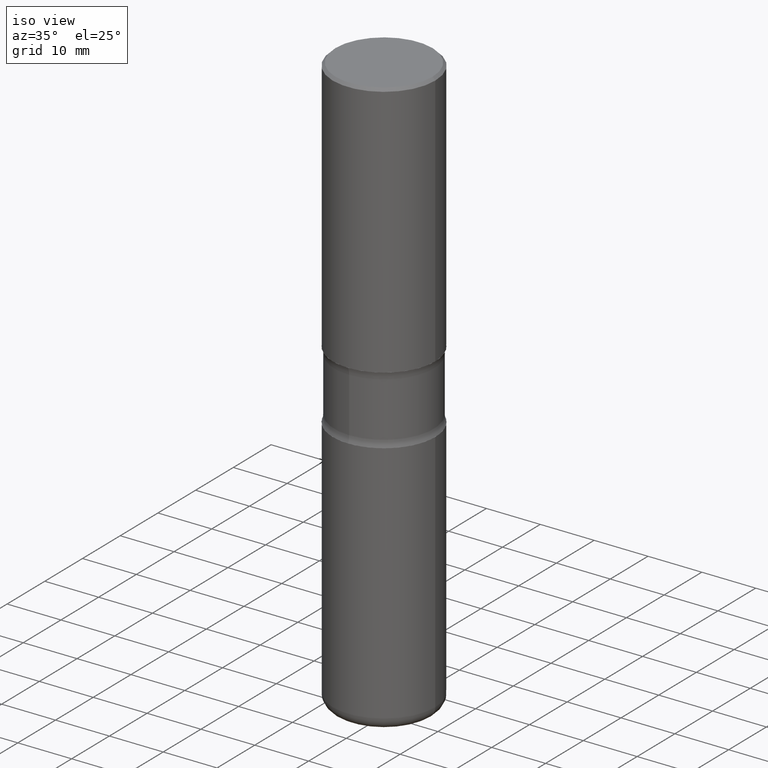
[diagram: clean part render]
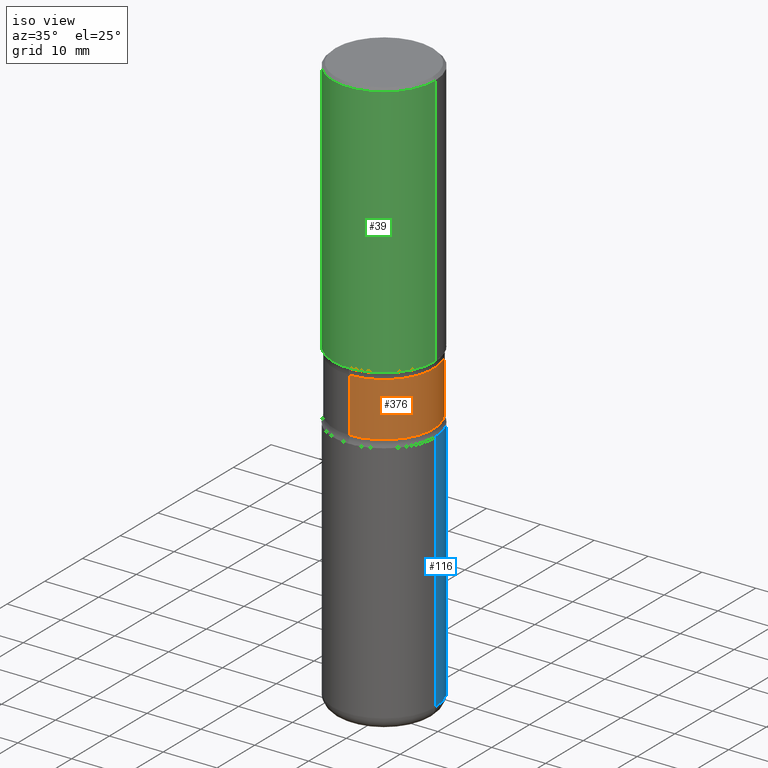
[diagram: same view with three faces highlighted in distinct colors, each labeled with its STEP entity id]
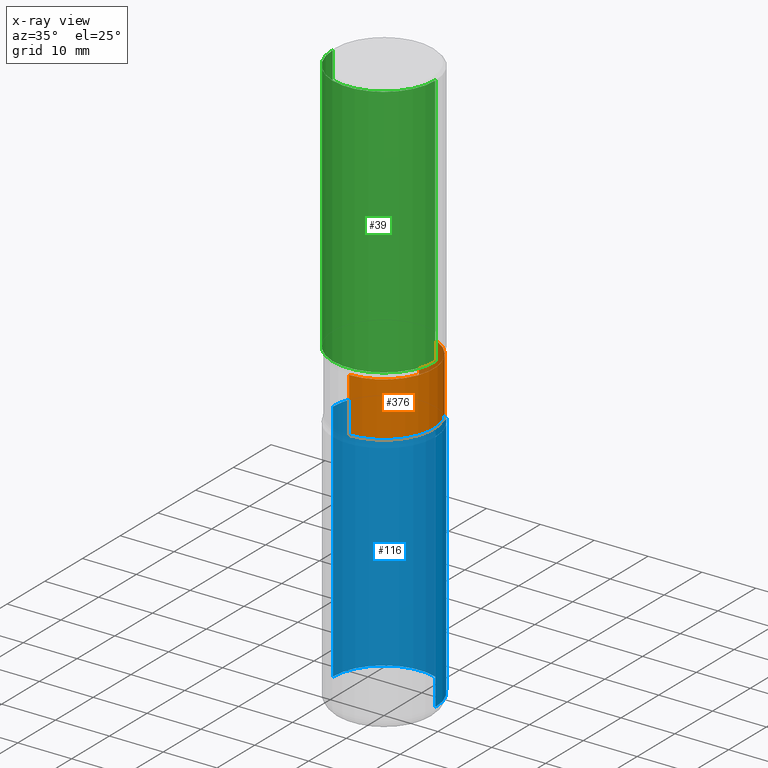
[diagram: x-ray of the same camera — body ghosted, the three highlighted faces saturated]
A machine part, iso view with three faces highlighted in distinct colors.
The next image is the same camera in x-ray (body ghosted, the three faces saturated) — at least one of them is partly hidden behind the body in this view.
Their STEP definitions:

[orange] entity #376 — the highlighted cylindrical surface (partial cylindrical patch) has radius 9.2456 mm, axis along (0, -0, -1).
#1 = AXIS2_PLACEMENT_3D ( 'NONE', #479, #169, #507 ) ;
#2 = DIRECTION ( 'NONE',  ( 6.982962677686265922E-15, 1.000000000000000000, -3.002030762268421058E-15 ) ) ;
#4 = DIRECTION ( 'NONE',  ( 2.460380973374126389E-29, -3.470126266680665129E-15, -1.000000000000000000 ) ) ;
#22 = EDGE_CURVE ( 'NONE', #209, #45, #68, .T. ) ;
#30 = CARTESIAN_POINT ( 'NONE',  ( -2.534954010176535209E-15, -0.3640000000000067071, -1.926273774973177089 ) ) ;
#45 = VERTEX_POINT ( 'NONE', #502 ) ;
#50 = CIRCLE ( 'NONE', #414, 0.3639999999999999902 ) ;
#68 = LINE ( 'NONE', #318, #114 ) ;
#77 = CARTESIAN_POINT ( 'NONE',  ( -2.534954010176524559E-15, -0.3640000000000081504, -2.323726225026820913 ) ) ;
#99 = ORIENTED_EDGE ( 'NONE', *, *, #22, .F. ) ;
#112 = EDGE_CURVE ( 'NONE', #209, #519, #492, .T. ) ;
#114 = VECTOR ( 'NONE', #190, 39.37007874015748143 ) ;
#154 = EDGE_CURVE ( 'NONE', #519, #162, #362, .T. ) ;
#162 = VERTEX_POINT ( 'NONE', #77 ) ;
#169 = DIRECTION ( 'NONE',  ( 2.460380973374126389E-29, -3.470126266680665129E-15, -1.000000000000000000 ) ) ;
#180 = CYLINDRICAL_SURFACE ( 'NONE', #527, 0.3639999999999999902 ) ;
#190 = DIRECTION ( 'NONE',  ( 2.460380973374126389E-29, -3.470126266680665523E-15, -1.000000000000000000 ) ) ;
#209 = VERTEX_POINT ( 'NONE', #467 ) ;
#214 = FACE_OUTER_BOUND ( 'NONE', #434, .T. ) ;
#234 = ORIENTED_EDGE ( 'NONE', *, *, #392, .F. ) ;
#263 = DIRECTION ( 'NONE',  ( 6.982962677686265922E-15, 1.000000000000000000, -3.752538452835526126E-15 ) ) ;
#269 = CARTESIAN_POINT ( 'NONE',  ( -2.497221271188732671E-15, -0.3640000000000148117, -4.249999999999999112 ) ) ;
#289 = ORIENTED_EDGE ( 'NONE', *, *, #154, .T. ) ;
#318 = CARTESIAN_POINT ( 'NONE',  ( 2.541798414677905228E-15, 0.3639999999999851688, -4.250000000000001776 ) ) ;
#352 = CARTESIAN_POINT ( 'NONE',  ( 5.681835394312626263E-29, -8.114341706426173465E-15, -2.323726225026822245 ) ) ;
#362 = LINE ( 'NONE', #269, #413 ) ;
#376 = ADVANCED_FACE ( 'NONE', ( #214 ), #180, .T. ) ;
#392 = EDGE_CURVE ( 'NONE', #45, #162, #50, .T. ) ;
#393 = CARTESIAN_POINT ( 'NONE',  ( 1.042120273976618612E-28, -1.479875492977871743E-14, -4.250000000000000000 ) ) ;
#413 = VECTOR ( 'NONE', #499, 39.37007874015748143 ) ;
#414 = AXIS2_PLACEMENT_3D ( 'NONE', #352, #4, #263 ) ;
#434 = EDGE_LOOP ( 'NONE', ( #517, #289, #234, #99 ) ) ;
#467 = CARTESIAN_POINT ( 'NONE',  ( 2.541798414677847641E-15, 0.3639999999999931624, -1.926273774973179753 ) ) ;
#479 = CARTESIAN_POINT ( 'NONE',  ( 4.703950948379710498E-29, -6.735131519738438150E-15, -1.926273774973178421 ) ) ;
#492 = CIRCLE ( 'NONE', #1, 0.3639999999999999347 ) ;
#499 = DIRECTION ( 'NONE',  ( 2.460380973374126389E-29, -3.470126266680665523E-15, -1.000000000000000000 ) ) ;
#502 = CARTESIAN_POINT ( 'NONE',  ( 2.541798414677857502E-15, 0.3639999999999918856, -2.323726225026823577 ) ) ;
#507 = DIRECTION ( 'NONE',  ( 6.982962677686265922E-15, 1.000000000000000000, -3.752538452835526915E-15 ) ) ;
#517 = ORIENTED_EDGE ( 'NONE', *, *, #112, .T. ) ;
#519 = VERTEX_POINT ( 'NONE', #30 ) ;
#527 = AXIS2_PLACEMENT_3D ( 'NONE', #393, #530, #2 ) ;
#530 = DIRECTION ( 'NONE',  ( 2.460380973374126389E-29, -3.470126266680665129E-15, -1.000000000000000000 ) ) ;

[blue] entity #116 — the highlighted cylindrical surface (partial cylindrical patch) has radius 9.525 mm, axis along (-0, 0, 1).
#5 = ORIENTED_EDGE ( 'NONE', *, *, #53, .T. ) ;
#38 = VERTEX_POINT ( 'NONE', #465 ) ;
#43 = VERTEX_POINT ( 'NONE', #73 ) ;
#53 = EDGE_CURVE ( 'NONE', #38, #43, #65, .T. ) ;
#65 = LINE ( 'NONE', #536, #357 ) ;
#73 = CARTESIAN_POINT ( 'NONE',  ( -0.3750000000000002776, -8.743880015569600564E-15, -2.375000000000000000 ) ) ;
#104 = VECTOR ( 'NONE', #317, 39.37007874015748143 ) ;
#116 = ADVANCED_FACE ( 'NONE', ( #252 ), #204, .T. ) ;
#123 = CARTESIAN_POINT ( 'NONE',  ( 0.000000000000000000, 0.000000000000000000, 0.000000000000000000 ) ) ;
#138 = CIRCLE ( 'NONE', #526, 0.3750000000000002776 ) ;
#142 = DIRECTION ( 'NONE',  ( 1.000000000000000000, -6.982962677686265922E-15, 0.000000000000000000 ) ) ;
#156 = CARTESIAN_POINT ( 'NONE',  ( 1.017315023373016887E-28, -1.452456236958748398E-14, -4.160000000000000142 ) ) ;
#172 = VERTEX_POINT ( 'NONE', #276 ) ;
#186 = CARTESIAN_POINT ( 'NONE',  ( 0.3750000000000004996, -1.714317337371984031E-14, -4.160000000000000142 ) ) ;
#194 = EDGE_LOOP ( 'NONE', ( #478, #5, #408, #471 ) ) ;
#201 = CIRCLE ( 'NONE', #292, 0.3750000000000003886 ) ;
#204 = CYLINDRICAL_SURFACE ( 'NONE', #258, 0.3750000000000003886 ) ;
#220 = EDGE_CURVE ( 'NONE', #396, #38, #201, .T. ) ;
#233 = DIRECTION ( 'NONE',  ( -2.445468806185136597E-29, 3.491481338843145583E-15, 1.000000000000000000 ) ) ;
#249 = EDGE_CURVE ( 'NONE', #172, #43, #138, .T. ) ;
#252 = FACE_OUTER_BOUND ( 'NONE', #194, .T. ) ;
#258 = AXIS2_PLACEMENT_3D ( 'NONE', #123, #518, #384 ) ;
#276 = CARTESIAN_POINT ( 'NONE',  ( 0.3750000000000002776, -1.091087918388482329E-14, -2.375000000000000000 ) ) ;
#292 = AXIS2_PLACEMENT_3D ( 'NONE', #156, #233, #142 ) ;
#317 = DIRECTION ( 'NONE',  ( -2.445468806185136877E-29, 3.491481338843145188E-15, 1.000000000000000000 ) ) ;
#357 = VECTOR ( 'NONE', #374, 39.37007874015748143 ) ;
#374 = DIRECTION ( 'NONE',  ( -2.445468806185136877E-29, 3.491481338843145188E-15, 1.000000000000000000 ) ) ;
#384 = DIRECTION ( 'NONE',  ( 1.000000000000000000, -6.982962677686265922E-15, 4.876176775795935793E-29 ) ) ;
#396 = VERTEX_POINT ( 'NONE', #186 ) ;
#399 = EDGE_CURVE ( 'NONE', #396, #172, #525, .T. ) ;
#408 = ORIENTED_EDGE ( 'NONE', *, *, #249, .F. ) ;
#415 = DIRECTION ( 'NONE',  ( 1.000000000000000000, -6.982962677686265922E-15, 0.000000000000000000 ) ) ;
#457 = DIRECTION ( 'NONE',  ( -2.445468806185136597E-29, 3.491481338843145583E-15, 1.000000000000000000 ) ) ;
#465 = CARTESIAN_POINT ( 'NONE',  ( -0.3750000000000004996, -1.186002711048710513E-14, -4.160000000000000142 ) ) ;
#471 = ORIENTED_EDGE ( 'NONE', *, *, #399, .F. ) ;
#478 = ORIENTED_EDGE ( 'NONE', *, *, #220, .T. ) ;
#486 = CARTESIAN_POINT ( 'NONE',  ( 0.3750000000000003886, -2.618611004132352383E-15, 1.828566290923477884E-29 ) ) ;
#497 = CARTESIAN_POINT ( 'NONE',  ( 5.807988414689700538E-29, -8.292268179752471696E-15, -2.375000000000000000 ) ) ;
#518 = DIRECTION ( 'NONE',  ( -2.445468806185136597E-29, 3.491481338843145583E-15, 1.000000000000000000 ) ) ;
#525 = LINE ( 'NONE', #486, #104 ) ;
#526 = AXIS2_PLACEMENT_3D ( 'NONE', #497, #457, #415 ) ;
#536 = CARTESIAN_POINT ( 'NONE',  ( -0.3750000000000003886, 2.664535259100378458E-15, -1.844600658845591560E-29 ) ) ;

[green] entity #39 — the highlighted cylindrical surface (partial cylindrical patch) has radius 9.525 mm, axis along (-0, 0, 1).
#18 = AXIS2_PLACEMENT_3D ( 'NONE', #223, #326, #369 ) ;
#23 = VERTEX_POINT ( 'NONE', #226 ) ;
#39 = ADVANCED_FACE ( 'NONE', ( #330 ), #491, .T. ) ;
#44 = ORIENTED_EDGE ( 'NONE', *, *, #441, .F. ) ;
#52 = ORIENTED_EDGE ( 'NONE', *, *, #390, .F. ) ;
#105 = DIRECTION ( 'NONE',  ( -2.445468806185136597E-29, 3.491481338843145583E-15, 1.000000000000000000 ) ) ;
#110 = CARTESIAN_POINT ( 'NONE',  ( 0.3750000000000001665, -2.618611004132351200E-15, 1.828566290923476763E-29 ) ) ;
#115 = VECTOR ( 'NONE', #523, 39.37007874015748143 ) ;
#141 = DIRECTION ( 'NONE',  ( -2.445468806185136597E-29, 3.491481338843145583E-15, 1.000000000000000000 ) ) ;
#143 = ORIENTED_EDGE ( 'NONE', *, *, #524, .T. ) ;
#150 = CARTESIAN_POINT ( 'NONE',  ( 0.000000000000000000, 0.000000000000000000, 0.000000000000000000 ) ) ;
#153 = EDGE_CURVE ( 'NONE', #23, #241, #300, .T. ) ;
#176 = AXIS2_PLACEMENT_3D ( 'NONE', #150, #105, #454 ) ;
#223 = CARTESIAN_POINT ( 'NONE',  ( 4.585254011597131679E-29, -6.546527510330899496E-15, -1.875000000000000444 ) ) ;
#226 = CARTESIAN_POINT ( 'NONE',  ( -0.3750000000000002776, -6.436433094535016571E-16, -1.875000000000000444 ) ) ;
#241 = VERTEX_POINT ( 'NONE', #410 ) ;
#253 = VERTEX_POINT ( 'NONE', #371 ) ;
#257 = VERTEX_POINT ( 'NONE', #542 ) ;
#277 = DIRECTION ( 'NONE',  ( -2.445468806185136877E-29, 3.491481338843145188E-15, 1.000000000000000000 ) ) ;
#282 = VECTOR ( 'NONE', #277, 39.37007874015748143 ) ;
#287 = EDGE_LOOP ( 'NONE', ( #44, #335, #143, #52 ) ) ;
#300 = CIRCLE ( 'NONE', #18, 0.3750000000000002776 ) ;
#308 = DIRECTION ( 'NONE',  ( 1.000000000000000000, -6.982962677686265922E-15, 0.000000000000000000 ) ) ;
#326 = DIRECTION ( 'NONE',  ( -2.445468806185136597E-29, 3.491481338843145583E-15, 1.000000000000000000 ) ) ;
#330 = FACE_OUTER_BOUND ( 'NONE', #287, .T. ) ;
#335 = ORIENTED_EDGE ( 'NONE', *, *, #153, .T. ) ;
#340 = CIRCLE ( 'NONE', #440, 0.3750000000000000555 ) ;
#353 = LINE ( 'NONE', #404, #115 ) ;
#355 = CARTESIAN_POINT ( 'NONE',  ( 4.890937612370289799E-31, -6.982962677686315028E-17, -0.02000000000000006981 ) ) ;
#369 = DIRECTION ( 'NONE',  ( 1.000000000000000000, -6.982962677686265922E-15, 0.000000000000000000 ) ) ;
#371 = CARTESIAN_POINT ( 'NONE',  ( 0.3750000000000000555, -2.642516375941188029E-15, -0.02000000000000006981 ) ) ;
#390 = EDGE_CURVE ( 'NONE', #257, #253, #340, .T. ) ;
#404 = CARTESIAN_POINT ( 'NONE',  ( -0.3750000000000001665, 2.664535259100376880E-15, -1.844600658845590439E-29 ) ) ;
#410 = CARTESIAN_POINT ( 'NONE',  ( 0.3750000000000002776, -9.165138514463251879E-15, -1.875000000000000444 ) ) ;
#440 = AXIS2_PLACEMENT_3D ( 'NONE', #355, #141, #308 ) ;
#441 = EDGE_CURVE ( 'NONE', #23, #257, #353, .T. ) ;
#454 = DIRECTION ( 'NONE',  ( 1.000000000000000000, -6.982962677686266711E-15, 4.876176775795935793E-29 ) ) ;
#464 = LINE ( 'NONE', #110, #282 ) ;
#491 = CYLINDRICAL_SURFACE ( 'NONE', #176, 0.3750000000000001665 ) ;
#523 = DIRECTION ( 'NONE',  ( -2.445468806185136877E-29, 3.491481338843145188E-15, 1.000000000000000000 ) ) ;
#524 = EDGE_CURVE ( 'NONE', #241, #253, #464, .T. ) ;
#542 = CARTESIAN_POINT ( 'NONE',  ( -0.3750000000000000555, 2.548781377355486718E-15, -0.02000000000000006981 ) ) ;